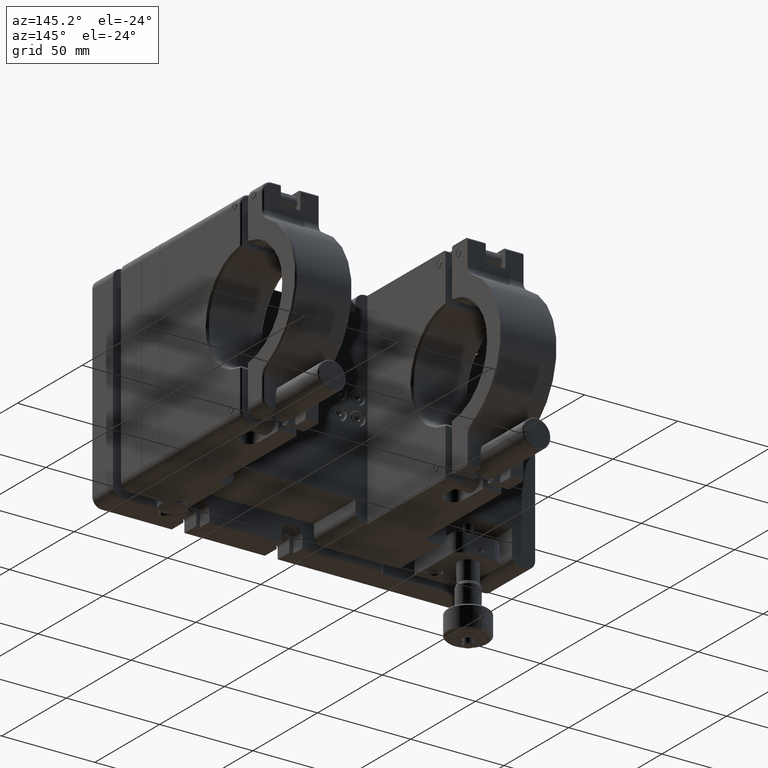
[diagram: clean part render]
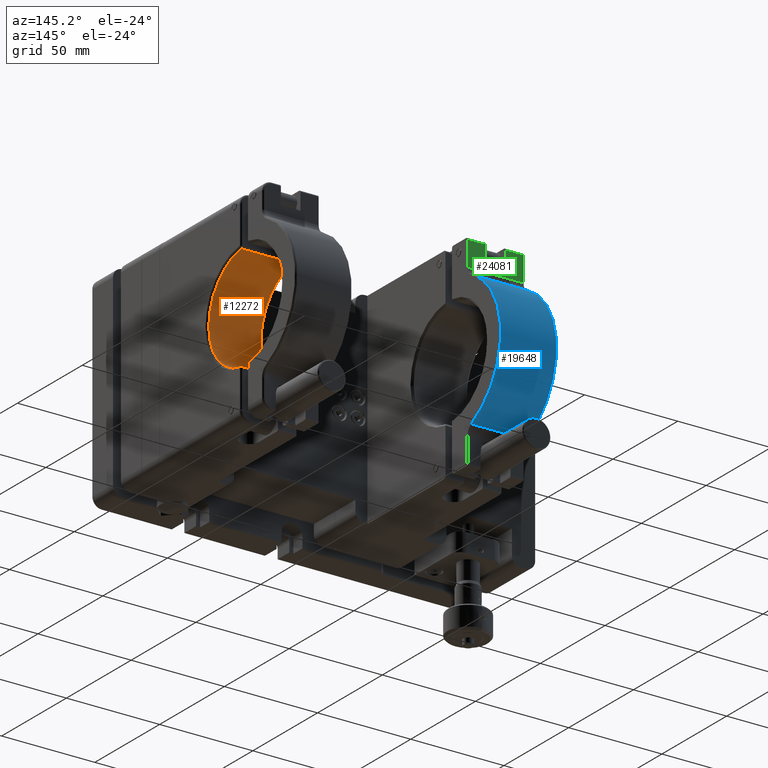
[diagram: same view with three faces highlighted in distinct colors, each labeled with its STEP entity id]
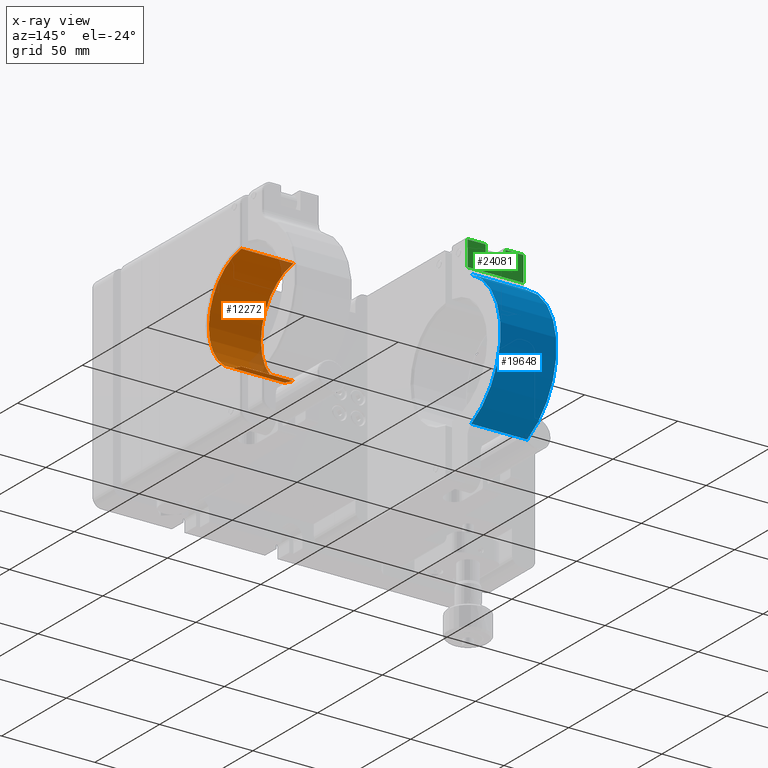
[diagram: x-ray of the same camera — body ghosted, the three highlighted faces saturated]
A machine part, auxiliary view with three faces highlighted in distinct colors.
The next image is the same camera in x-ray (body ghosted, the three faces saturated) — at least one of them is partly hidden behind the body in this view.
Their STEP definitions:

[orange] entity #12272 — the highlighted cylindrical surface (partial cylindrical patch) has radius 28.6 mm, axis along (1, 0, -0).
#1133 = VECTOR ( 'NONE', #49519, 1000.000000000000000 ) ;
#1268 = CARTESIAN_POINT ( 'NONE',  ( 98.89407885232775186, 105.3873539497945160, 28.38346909251884398 ) ) ;
#1489 = EDGE_CURVE ( 'NONE', #34092, #29392, #48988, .T. ) ;
#5925 = CARTESIAN_POINT ( 'NONE',  ( 70.89407885232769502, 105.3873539497943597, -28.38346909251882977 ) ) ;
#8714 = CARTESIAN_POINT ( 'NONE',  ( 98.89407885232769502, 108.9000000000008299, -1.353489728253588212E-14 ) ) ;
#12223 = VERTEX_POINT ( 'NONE', #1268 ) ;
#12272 = ADVANCED_FACE ( 'NONE', ( #44364 ), #35914, .F. ) ;
#18120 = EDGE_LOOP ( 'NONE', ( #23857, #39442, #39972, #42575 ) ) ;
#20272 = DIRECTION ( 'NONE',  ( 1.000000000000000000, 4.473367521758299178E-15, -1.117161918529069094E-15 ) ) ;
#21317 = DIRECTION ( 'NONE',  ( -1.000000000000000000, -4.473367521758299178E-15, 1.117161918529069094E-15 ) ) ;
#21855 = CARTESIAN_POINT ( 'NONE',  ( 69.89407885232773765, 105.3873539497943312, 28.38346909251886174 ) ) ;
#23853 = CARTESIAN_POINT ( 'NONE',  ( 70.89407885232770923, 108.9000000000006878, 1.774563643627803120E-14 ) ) ;
#23857 = ORIENTED_EDGE ( 'NONE', *, *, #24024, .T. ) ;
#24024 = EDGE_CURVE ( 'NONE', #29392, #45973, #31999, .T. ) ;
#24374 = DIRECTION ( 'NONE',  ( 1.000000000000000000, 4.473367521758299178E-15, -1.117161918529069094E-15 ) ) ;
#27708 = CARTESIAN_POINT ( 'NONE',  ( 69.89407885232769502, 108.9000000000006878, 1.886279835480712968E-14 ) ) ;
#27786 = CARTESIAN_POINT ( 'NONE',  ( 98.89407885232768081, 105.3873539497944876, -28.38346909251884753 ) ) ;
#29392 = VERTEX_POINT ( 'NONE', #5925 ) ;
#30156 = AXIS2_PLACEMENT_3D ( 'NONE', #8714, #24374, #40017 ) ;
#31592 = AXIS2_PLACEMENT_3D ( 'NONE', #27708, #20272, #32312 ) ;
#31999 = CIRCLE ( 'NONE', #36091, 28.60000000000004405 ) ;
#32312 = DIRECTION ( 'NONE',  ( -9.704746718751353066E-16, 4.852373359375676533E-16, -1.000000000000000000 ) ) ;
#32564 = DIRECTION ( 'NONE',  ( -9.704746718751353066E-16, 1.455712007812703058E-15, -1.000000000000000000 ) ) ;
#34092 = VERTEX_POINT ( 'NONE', #27786 ) ;
#35914 = CYLINDRICAL_SURFACE ( 'NONE', #31592, 28.60000000000004405 ) ;
#36091 = AXIS2_PLACEMENT_3D ( 'NONE', #23853, #39505, #32564 ) ;
#37176 = EDGE_CURVE ( 'NONE', #45973, #12223, #48530, .T. ) ;
#37519 = CIRCLE ( 'NONE', #30156, 28.60000000000004405 ) ;
#37871 = CARTESIAN_POINT ( 'NONE',  ( 70.89407885232775186, 105.3873539497943739, 28.38346909251885819 ) ) ;
#39442 = ORIENTED_EDGE ( 'NONE', *, *, #37176, .T. ) ;
#39505 = DIRECTION ( 'NONE',  ( -1.000000000000000000, -4.473367521758299178E-15, 1.117161918529069094E-15 ) ) ;
#39972 = ORIENTED_EDGE ( 'NONE', *, *, #42890, .T. ) ;
#40017 = DIRECTION ( 'NONE',  ( -9.704746718751353066E-16, 4.852373359375676533E-16, -1.000000000000000000 ) ) ;
#42575 = ORIENTED_EDGE ( 'NONE', *, *, #1489, .T. ) ;
#42890 = EDGE_CURVE ( 'NONE', #12223, #34092, #37519, .T. ) ;
#44106 = VECTOR ( 'NONE', #21317, 1000.000000000000000 ) ;
#44364 = FACE_OUTER_BOUND ( 'NONE', #18120, .T. ) ;
#45973 = VERTEX_POINT ( 'NONE', #37871 ) ;
#48530 = LINE ( 'NONE', #21855, #1133 ) ;
#48729 = CARTESIAN_POINT ( 'NONE',  ( 69.89407885232768081, 105.3873539497943455, -28.38346909251882622 ) ) ;
#48988 = LINE ( 'NONE', #48729, #44106 ) ;
#49519 = DIRECTION ( 'NONE',  ( 1.000000000000000000, 4.473367521758299178E-15, -1.117161918529069094E-15 ) ) ;

[blue] entity #19648 — the highlighted cylindrical surface (partial cylindrical patch) has radius 40 mm, axis along (1, 0, 0).
#837 = VERTEX_POINT ( 'NONE', #43175 ) ;
#864 = VERTEX_POINT ( 'NONE', #24190 ) ;
#1000 = VERTEX_POINT ( 'NONE', #25716 ) ;
#2328 = ORIENTED_EDGE ( 'NONE', *, *, #43316, .T. ) ;
#4505 = CARTESIAN_POINT ( 'NONE',  ( -40.00000000000087397, 108.8999999999991957, -1.581373592440459580E-14 ) ) ;
#5231 = DIRECTION ( 'NONE',  ( 1.000000000000000000, 4.511439337623138347E-15, 1.783295733304157693E-15 ) ) ;
#5825 = DIRECTION ( 'NONE',  ( 1.778091562876226877E-15, 3.469446951953613696E-16, -1.000000000000000000 ) ) ;
#6164 = VERTEX_POINT ( 'NONE', #33174 ) ;
#8880 = AXIS2_PLACEMENT_3D ( 'NONE', #13264, #25329, #5825 ) ;
#8968 = CARTESIAN_POINT ( 'NONE',  ( -40.00000000000088107, 126.2333333333325243, -36.04934889225542349 ) ) ;
#9686 = ORIENTED_EDGE ( 'NONE', *, *, #50321, .T. ) ;
#9842 = FACE_OUTER_BOUND ( 'NONE', #19860, .T. ) ;
#13264 = CARTESIAN_POINT ( 'NONE',  ( -10.00000000000087397, 108.8999999999993236, 3.768513607472013499E-14 ) ) ;
#15796 = DIRECTION ( 'NONE',  ( 1.734723475976806700E-15, 3.469446951953613696E-16, -1.000000000000000000 ) ) ;
#17546 = DIRECTION ( 'NONE',  ( 1.734723475976806700E-15, 3.469446951953613696E-16, -1.000000000000000000 ) ) ;
#18242 = DIRECTION ( 'NONE',  ( 1.000000000000000000, 4.511439337623138347E-15, 1.783295733304157693E-15 ) ) ;
#19648 = ADVANCED_FACE ( 'NONE', ( #9842 ), #41380, .T. ) ;
#19860 = EDGE_LOOP ( 'NONE', ( #2328, #40638, #49533, #9686 ) ) ;
#21272 = AXIS2_PLACEMENT_3D ( 'NONE', #4505, #35304, #15796 ) ;
#22034 = AXIS2_PLACEMENT_3D ( 'NONE', #33444, #5231, #17546 ) ;
#22092 = CARTESIAN_POINT ( 'NONE',  ( -40.00000000000101608, 126.2333333333325101, 36.04934889225539507 ) ) ;
#22310 = EDGE_CURVE ( 'NONE', #6164, #864, #41708, .T. ) ;
#24190 = CARTESIAN_POINT ( 'NONE',  ( -40.00000000000088107, 126.2333333333325243, -36.04934889225542349 ) ) ;
#25329 = DIRECTION ( 'NONE',  ( -1.000000000000000000, -4.511439337623138347E-15, -1.783295733304157693E-15 ) ) ;
#25716 = CARTESIAN_POINT ( 'NONE',  ( -10.00000000000088640, 126.2333333333326664, -36.04934889225536665 ) ) ;
#28029 = VECTOR ( 'NONE', #18242, 1000.000000000000000 ) ;
#30031 = LINE ( 'NONE', #22092, #28029 ) ;
#33174 = CARTESIAN_POINT ( 'NONE',  ( -40.00000000000101608, 126.2333333333325101, 36.04934889225539507 ) ) ;
#33444 = CARTESIAN_POINT ( 'NONE',  ( -40.00000000000087397, 108.8999999999991957, -1.581373592440459580E-14 ) ) ;
#35304 = DIRECTION ( 'NONE',  ( -1.000000000000000000, -4.511439337623138347E-15, -1.783295733304157693E-15 ) ) ;
#40638 = ORIENTED_EDGE ( 'NONE', *, *, #42993, .T. ) ;
#40777 = LINE ( 'NONE', #8968, #44885 ) ;
#41274 = DIRECTION ( 'NONE',  ( -1.000000000000000000, -4.511439337623138347E-15, -1.783295733304157693E-15 ) ) ;
#41380 = CYLINDRICAL_SURFACE ( 'NONE', #22034, 40.00000000000000711 ) ;
#41708 = CIRCLE ( 'NONE', #21272, 40.00000000000000711 ) ;
#42447 = CIRCLE ( 'NONE', #8880, 40.00000000000000711 ) ;
#42993 = EDGE_CURVE ( 'NONE', #1000, #864, #40777, .T. ) ;
#43175 = CARTESIAN_POINT ( 'NONE',  ( -10.00000000000101608, 126.2333333333326379, 36.04934889225545191 ) ) ;
#43316 = EDGE_CURVE ( 'NONE', #837, #1000, #42447, .T. ) ;
#44885 = VECTOR ( 'NONE', #41274, 1000.000000000000000 ) ;
#49533 = ORIENTED_EDGE ( 'NONE', *, *, #22310, .F. ) ;
#50321 = EDGE_CURVE ( 'NONE', #6164, #837, #30031, .T. ) ;

[green] entity #24081 — the highlighted planar face has unit normal (0, -1, -0).
#17 = AXIS2_PLACEMENT_3D ( 'NONE', #33065, #45607, #17422 ) ;
#1780 = FACE_OUTER_BOUND ( 'NONE', #27079, .T. ) ;
#3442 = EDGE_CURVE ( 'NONE', #35035, #14005, #38018, .T. ) ;
#3660 = DIRECTION ( 'NONE',  ( 1.790234627208064527E-15, 3.466198819422834469E-16, -1.000000000000000000 ) ) ;
#4294 = EDGE_CURVE ( 'NONE', #20865, #16959, #31214, .T. ) ;
#4333 = EDGE_CURVE ( 'NONE', #41823, #14005, #10683, .T. ) ;
#4698 = ORIENTED_EDGE ( 'NONE', *, *, #45540, .T. ) ;
#5996 = ORIENTED_EDGE ( 'NONE', *, *, #45058, .F. ) ;
#8906 = EDGE_CURVE ( 'NONE', #47339, #35035, #22656, .T. ) ;
#8963 = CARTESIAN_POINT ( 'NONE',  ( -30.25000000000101963, 123.3999999999992241, 45.00000000000000000 ) ) ;
#9629 = DIRECTION ( 'NONE',  ( -1.000000000000000000, -4.511439337623138347E-15, -1.783295733304157693E-15 ) ) ;
#10683 = LINE ( 'NONE', #34794, #21640 ) ;
#11825 = CARTESIAN_POINT ( 'NONE',  ( -40.00000000000103739, 123.3999999999991815, 53.99999999999998579 ) ) ;
#12091 = LINE ( 'NONE', #11825, #34929 ) ;
#12318 = VERTEX_POINT ( 'NONE', #8963 ) ;
#12608 = ORIENTED_EDGE ( 'NONE', *, *, #24429, .T. ) ;
#13478 = EDGE_CURVE ( 'NONE', #41823, #31337, #12091, .T. ) ;
#14005 = VERTEX_POINT ( 'NONE', #35632 ) ;
#15153 = CARTESIAN_POINT ( 'NONE',  ( -40.00000000000102318, 123.3999999999991815, 44.99999999999997868 ) ) ;
#16547 = ORIENTED_EDGE ( 'NONE', *, *, #4294, .T. ) ;
#16657 = VECTOR ( 'NONE', #9629, 1000.000000000000000 ) ;
#16959 = VERTEX_POINT ( 'NONE', #20623 ) ;
#17422 = DIRECTION ( 'NONE',  ( 1.000000000000000000, 4.511439337623138347E-15, 1.783295733304157693E-15 ) ) ;
#18421 = PLANE ( 'NONE',  #17 ) ;
#20308 = DIRECTION ( 'NONE',  ( 1.000000000000000000, 4.511439337623138347E-15, 1.783295733304157693E-15 ) ) ;
#20623 = CARTESIAN_POINT ( 'NONE',  ( -19.75000000000103384, 123.3999999999992667, 54.00000000000002132 ) ) ;
#20865 = VERTEX_POINT ( 'NONE', #39628 ) ;
#20931 = VECTOR ( 'NONE', #3660, 1000.000000000000000 ) ;
#21640 = VECTOR ( 'NONE', #22488, 1000.000000000000000 ) ;
#21790 = DIRECTION ( 'NONE',  ( 1.000000000000000000, 4.511439337623138347E-15, 1.783295733304157693E-15 ) ) ;
#22488 = DIRECTION ( 'NONE',  ( 1.790234627208064527E-15, 3.466198819422834469E-16, -1.000000000000000000 ) ) ;
#22656 = LINE ( 'NONE', #30858, #20931 ) ;
#22868 = LINE ( 'NONE', #15153, #23715 ) ;
#23439 = CARTESIAN_POINT ( 'NONE',  ( -10.00000000000101075, 123.3999999999993094, 40.55551750378737097 ) ) ;
#23715 = VECTOR ( 'NONE', #27730, 1000.000000000000000 ) ;
#24081 = ADVANCED_FACE ( 'NONE', ( #1780 ), #18421, .F. ) ;
#24429 = EDGE_CURVE ( 'NONE', #31337, #12318, #42027, .T. ) ;
#26267 = VECTOR ( 'NONE', #49973, 1000.000000000000000 ) ;
#27079 = EDGE_LOOP ( 'NONE', ( #38855, #12608, #5996, #16547, #4698, #49544, #33006, #29618 ) ) ;
#27343 = CARTESIAN_POINT ( 'NONE',  ( -30.25000000000103384, 123.3999999999992241, 54.00000000000000711 ) ) ;
#27730 = DIRECTION ( 'NONE',  ( -1.000000000000000000, -4.511439337623138347E-15, -1.783295733304157693E-15 ) ) ;
#28981 = CARTESIAN_POINT ( 'NONE',  ( -40.00000000000103739, 123.3999999999991815, 53.99999999999998579 ) ) ;
#29618 = ORIENTED_EDGE ( 'NONE', *, *, #4333, .F. ) ;
#30858 = CARTESIAN_POINT ( 'NONE',  ( -10.00000000000105338, 123.3999999999993094, 63.94182537019797508 ) ) ;
#31214 = LINE ( 'NONE', #38126, #46998 ) ;
#31337 = VERTEX_POINT ( 'NONE', #27343 ) ;
#32740 = CARTESIAN_POINT ( 'NONE',  ( -40.00000000000100897, 123.3999999999991815, 40.55551750378731413 ) ) ;
#33006 = ORIENTED_EDGE ( 'NONE', *, *, #3442, .T. ) ;
#33065 = CARTESIAN_POINT ( 'NONE',  ( -40.00000000000105160, 123.3999999999991815, 63.94182537019791823 ) ) ;
#34794 = CARTESIAN_POINT ( 'NONE',  ( -40.00000000000105160, 123.3999999999991815, 63.94182537019791823 ) ) ;
#34852 = CARTESIAN_POINT ( 'NONE',  ( -30.25000000000105516, 123.3999999999992241, 63.94182537019793244 ) ) ;
#34929 = VECTOR ( 'NONE', #20308, 1000.000000000000000 ) ;
#35035 = VERTEX_POINT ( 'NONE', #23439 ) ;
#35632 = CARTESIAN_POINT ( 'NONE',  ( -40.00000000000100897, 123.3999999999991815, 40.55551750378731413 ) ) ;
#38018 = LINE ( 'NONE', #32740, #16657 ) ;
#38126 = CARTESIAN_POINT ( 'NONE',  ( -19.75000000000105160, 123.3999999999992667, 63.94182537019796086 ) ) ;
#38855 = ORIENTED_EDGE ( 'NONE', *, *, #13478, .T. ) ;
#39628 = CARTESIAN_POINT ( 'NONE',  ( -19.75000000000101608, 123.3999999999992809, 45.00000000000001421 ) ) ;
#40964 = VECTOR ( 'NONE', #21790, 1000.000000000000000 ) ;
#41280 = LINE ( 'NONE', #28981, #40964 ) ;
#41823 = VERTEX_POINT ( 'NONE', #43520 ) ;
#42027 = LINE ( 'NONE', #34852, #26267 ) ;
#43520 = CARTESIAN_POINT ( 'NONE',  ( -40.00000000000103739, 123.3999999999991815, 53.99999999999998579 ) ) ;
#44263 = CARTESIAN_POINT ( 'NONE',  ( -10.00000000000103562, 123.3999999999993094, 54.00000000000004263 ) ) ;
#45058 = EDGE_CURVE ( 'NONE', #20865, #12318, #22868, .T. ) ;
#45540 = EDGE_CURVE ( 'NONE', #16959, #47339, #41280, .T. ) ;
#45607 = DIRECTION ( 'NONE',  ( 4.511439337623139136E-15, -1.000000000000000000, -3.457653458388622086E-16 ) ) ;
#46328 = DIRECTION ( 'NONE',  ( -1.790234627208064527E-15, -3.466198819422834469E-16, 1.000000000000000000 ) ) ;
#46998 = VECTOR ( 'NONE', #46328, 1000.000000000000000 ) ;
#47339 = VERTEX_POINT ( 'NONE', #44263 ) ;
#49544 = ORIENTED_EDGE ( 'NONE', *, *, #8906, .T. ) ;
#49973 = DIRECTION ( 'NONE',  ( 1.790234627208064527E-15, 3.466198819422834469E-16, -1.000000000000000000 ) ) ;